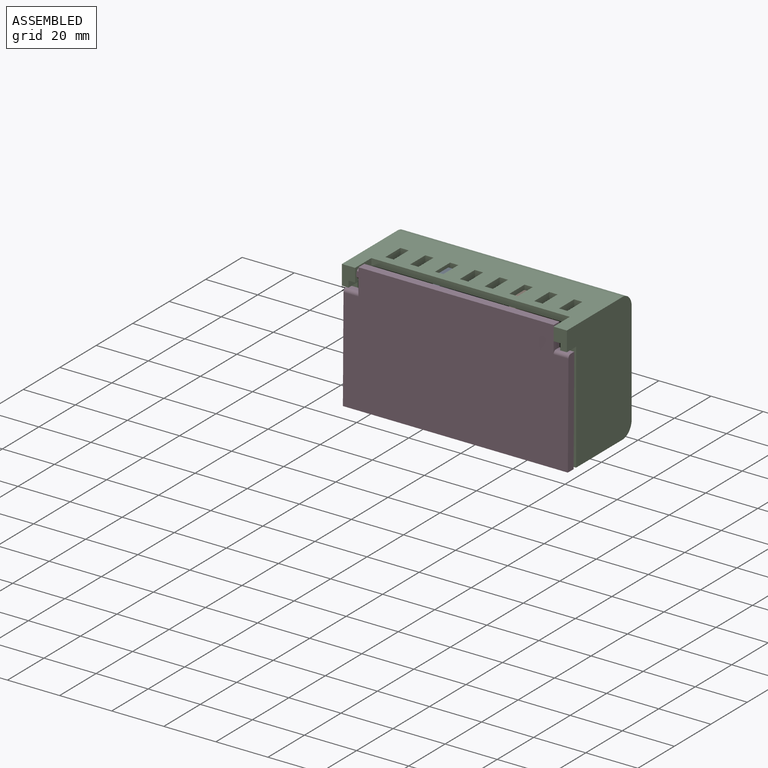
[diagram: assembled view]
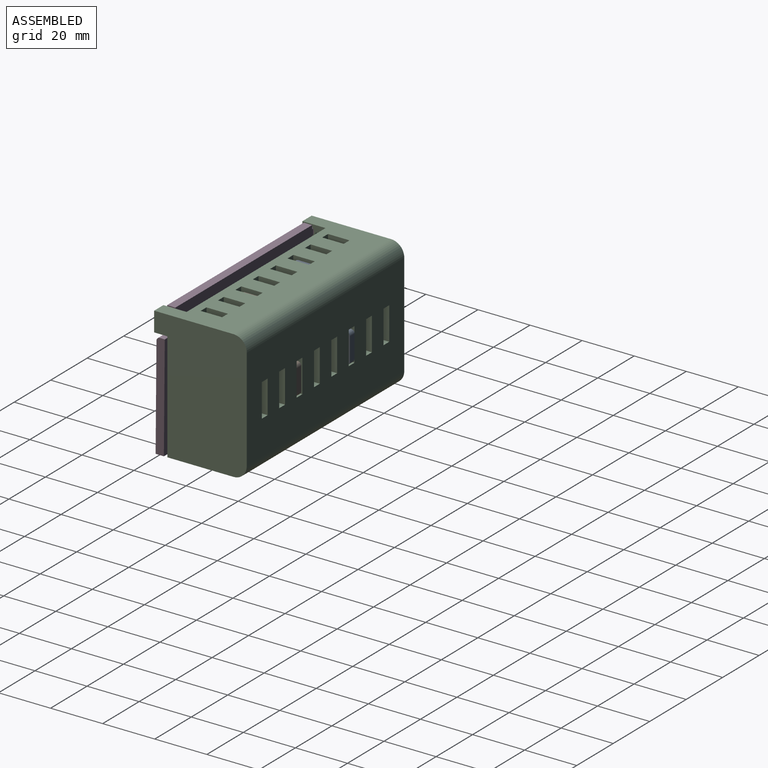
[diagram: assembled view, second angle]
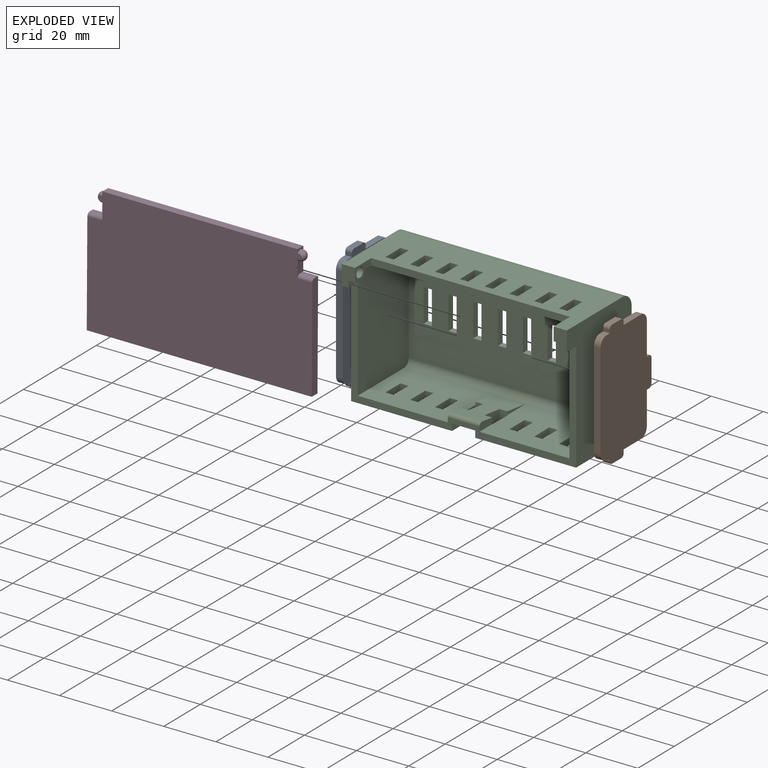
[diagram: exploded view]
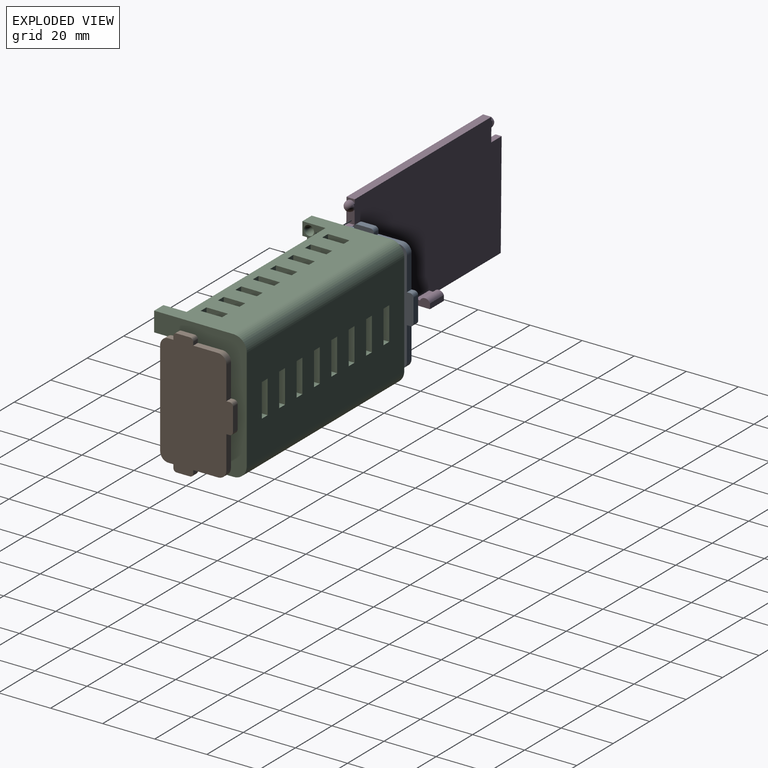
[diagram: exploded view, second angle]
ASSEMBLY  parts=4 mates=4
PART A: 28 faces, bbox 48.3x27.9x2.5 mm
  f0: plane 2.54x1.27mm, normal (1,0,0), area 3.2mm2, adj f1,f16,f17,f19
  f1: plane 12.7x2.54mm, normal (0,-1,0), area 32.3mm2, adj f0,f16,f17,f24
  f2: plane 9.53x2.54mm, normal (1,0,0), area 24.2mm2, adj f3,f16,f17,f24
  f3: plane 2.54x1.27mm, normal (0,-1,0), area 3.2mm2, adj f2,f16,f17,f22
  f4: plane 5.08x2.54mm, normal (1,0,0), area 12.9mm2, adj f16,f17,f22,f23
  f5: plane 2.54x1.27mm, normal (0,1,0), area 3.2mm2, adj f6,f16,f17,f23
  f6: plane 2.54x1.91mm, normal (1,0,0), area 4.8mm2, adj f5,f16,f17,f25
  f7: plane 36.83x2.54mm, normal (0,1,0), area 93.5mm2, adj f16,f17,f25,f26
  f8: plane 2.54x1.91mm, normal (-1,0,0), area 4.8mm2, adj f9,f16,f17,f26
  f9: plane 2.54x1.27mm, normal (0,1,0), area 3.2mm2, adj f8,f16,f17,f20
  f10: plane 5.08x2.54mm, normal (-1,0,0), area 12.9mm2, adj f16,f17,f20,f21
  f11: plane 2.54x1.27mm, normal (0,-1,0), area 3.2mm2, adj f12,f16,f17,f21
  f12: plane 9.53x2.54mm, normal (-1,0,0), area 24.2mm2, adj f11,f16,f17,f27
  f13: plane 12.7x2.54mm, normal (0,-1,0), area 32.3mm2, adj f14,f16,f17,f27
  f14: plane 2.54x1.27mm, normal (-1,0,0), area 3.2mm2, adj f13,f16,f17,f18
  f15: plane 8.89x2.54mm, normal (0,-1,0), area 22.6mm2, adj f16,f17,f18,f19
  f16: plane 48.26x27.94mm, normal (0,0,1), area 1153.8mm2, adj f0,f1,f2,f3,f4,f5,f6,f7
  f17: plane 48.26x27.94mm, normal (0,0,-1), area 1153.8mm2, adj f0,f1,f2,f3,f4,f5,f6,f7
  f18: cylinder r=1.27mm len=2.54mm, axis (0,0,-1), area 5.1mm2, adj f14,f15,f16,f17
  f19: cylinder r=1.27mm len=2.54mm, axis (0,0,1), area 5.1mm2, adj f0,f15,f16,f17
  f20: cylinder r=1.27mm len=2.54mm, axis (0,0,-1), area 5.1mm2, adj f9,f10,f16,f17
  f21: cylinder r=1.27mm len=2.54mm, axis (0,0,1), area 5.1mm2, adj f10,f11,f16,f17
  f22: cylinder r=1.27mm len=2.54mm, axis (0,0,1), area 5.1mm2, adj f3,f4,f16,f17
  f23: cylinder r=1.27mm len=2.54mm, axis (0,0,-1), area 5.1mm2, adj f4,f5,f16,f17
  f24: cylinder r=3.17mm len=3.18mm, axis (0,0,-1), area 12.7mm2, adj f1,f2,f16,f17
  f25: cylinder r=3.17mm len=3.18mm, axis (0,0,1), area 12.7mm2, adj f6,f7,f16,f17
  f26: cylinder r=3.17mm len=3.18mm, axis (0,0,-1), area 12.7mm2, adj f7,f8,f16,f17
  f27: cylinder r=3.17mm len=3.18mm, axis (0,0,1), area 12.7mm2, adj f12,f13,f16,f17
PART B: same geometry as A
PART C: 137 faces, bbox 86.4x49.5x35.6 mm
  f0: plane 23.97x12.19mm, normal (0,0.99,-0.12), area 245.9mm2, adj f1,f2,f18,f60,f62,f63,f72,f73
  f1: plane 6.99x3.01mm, normal (1,0,0), area 18.7mm2, adj f0,f4,f10,f72,f136
  f2: plane 6.99x3.01mm, normal (-1,0,0), area 18.7mm2, adj f0,f4,f5,f60,f136
  f3: plane 8.89x1.27mm, normal (0,-1,0), area 11.3mm2, adj f4,f131,f132,f135
  f4: plane 86.36x41.99mm, normal (0,0,1), area 418.4mm2, adj f1,f2,f3,f5,f9,f10,f12,f13
  f5: plane 34.54x25.4mm, normal (0,1,0), area 796.7mm2, adj f2,f4,f16,f18,f24,f25,f26,f27
  f6: plane 86.36x30.48mm, normal (0,1,0), area 1745.2mm2, adj f12,f13,f15,f20,f21,f22,f23,f32
  f7: plane 86.36x39.37mm, normal (0,0,-1), area 3077.4mm2, adj f12,f13,f14,f15,f28,f29,f30,f31
  f8: plane 81.28x39.37mm, normal (0,0,1), area 2877.4mm2, adj f16,f17,f18,f19,f28,f29,f30,f31
  f9: plane 86.36x25.4mm, normal (0,-1,0), area 1927.4mm2, adj f4,f12,f13,f14,f24,f25,f26,f27
  f10: plane 34.54x25.4mm, normal (0,1,0), area 796.7mm2, adj f1,f4,f17,f18,f72,f74,f75,f84
  f11: plane 81.28x25.4mm, normal (0,-1,0), area 1564.5mm2, adj f16,f17,f19,f20,f21,f22,f23,f32
  f12: plane 49.53x35.56mm, normal (-1,0,0), area 1536.9mm2, adj f4,f6,f7,f9,f14,f15,f119,f120
  f13: plane 49.53x35.56mm, normal (1,0,0), area 1536.9mm2, adj f4,f6,f7,f9,f14,f15,f123,f126
  f14: cylinder r=5.08mm len=86.36mm, axis (1,0,0), area 689.1mm2, adj f7,f9,f12,f13
  f15: cylinder r=5.08mm len=86.36mm, axis (-1,0,0), area 689.1mm2, adj f6,f7,f12,f13
  f16: plane 44.45x33.02mm, normal (1,0,0), area 1251.6mm2, adj f4,f5,f8,f11,f18,f19,f116,f117
  f17: plane 44.45x33.02mm, normal (-1,0,0), area 1251.6mm2, adj f4,f8,f10,f11,f18,f19,f122,f123
  f18: cylinder r=2.54mm len=81.28mm, axis (1,0,0), area 324.3mm2, adj f0,f5,f8,f10,f16,f17
  f19: cylinder r=2.54mm len=81.28mm, axis (-1,0,0), area 324.3mm2, adj f8,f11,f16,f17
  f20: plane 8.26x2.54mm, normal (-1,0,0), area 21mm2, adj f6,f11,f21,f23
  f21: plane 3.18x2.54mm, normal (0,0,1), area 8.1mm2, adj f6,f11,f20,f22
  f22: plane 8.26x2.54mm, normal (1,0,0), area 21mm2, adj f6,f11,f21,f23
  f23: plane 3.18x2.54mm, normal (0,0,-1), area 8.1mm2, adj f6,f11,f20,f22
  f24: plane 3.18x2.54mm, normal (0,0,-1), area 8.1mm2, adj f5,f9,f25,f27
  f25: plane 8.26x2.54mm, normal (1,0,0), area 21mm2, adj f5,f9,f24,f26
  f26: plane 3.18x2.54mm, normal (0,0,1), area 8.1mm2, adj f5,f9,f25,f27
  f27: plane 8.26x2.54mm, normal (-1,0,0), area 21mm2, adj f5,f9,f24,f26
  f28: plane 12.7x2.54mm, normal (1,0,0), area 32.3mm2, adj f7,f8,f29,f31
  f29: plane 3.18x2.54mm, normal (0,-1,0), area 8.1mm2, adj f7,f8,f28,f30
  f30: plane 12.7x2.54mm, normal (-1,0,0), area 32.3mm2, adj f7,f8,f29,f31
  f31: plane 3.18x2.54mm, normal (0,1,0), area 8.1mm2, adj f7,f8,f28,f30
  f32: plane 8.26x2.54mm, normal (-1,0,0), area 21mm2, adj f6,f11,f33,f35
  f33: plane 3.18x2.54mm, normal (0,0,1), area 8.1mm2, adj f6,f11,f32,f34
  f34: plane 8.26x2.54mm, normal (1,0,0), area 21mm2, adj f6,f11,f33,f35
  f35: plane 3.18x2.54mm, normal (0,0,-1), area 8.1mm2, adj f6,f11,f32,f34
  f36: plane 3.18x2.54mm, normal (0,0,-1), area 8.1mm2, adj f5,f9,f37,f39
  f37: plane 8.26x2.54mm, normal (1,0,0), area 21mm2, adj f5,f9,f36,f38
  f38: plane 3.18x2.54mm, normal (0,0,1), area 8.1mm2, adj f5,f9,f37,f39
  f39: plane 8.26x2.54mm, normal (-1,0,0), area 21mm2, adj f5,f9,f36,f38
  f40: plane 12.7x2.54mm, normal (1,0,0), area 32.3mm2, adj f7,f8,f41,f43
  f41: plane 3.18x2.54mm, normal (0,-1,0), area 8.1mm2, adj f7,f8,f40,f42
  f42: plane 12.7x2.54mm, normal (-1,0,0), area 32.3mm2, adj f7,f8,f41,f43
  f43: plane 3.18x2.54mm, normal (0,1,0), area 8.1mm2, adj f7,f8,f40,f42
  f44: plane 8.26x2.54mm, normal (-1,0,0), area 21mm2, adj f6,f11,f45,f47
  f45: plane 3.18x2.54mm, normal (0,0,1), area 8.1mm2, adj f6,f11,f44,f46
  f46: plane 8.26x2.54mm, normal (1,0,0), area 21mm2, adj f6,f11,f45,f47
  f47: plane 3.18x2.54mm, normal (0,0,-1), area 8.1mm2, adj f6,f11,f44,f46
  f48: plane 3.18x2.54mm, normal (0,0,-1), area 8.1mm2, adj f5,f9,f49,f51
  f49: plane 8.26x2.54mm, normal (1,0,0), area 21mm2, adj f5,f9,f48,f50
  f50: plane 3.18x2.54mm, normal (0,0,1), area 8.1mm2, adj f5,f9,f49,f51
  f51: plane 8.26x2.54mm, normal (-1,0,0), area 21mm2, adj f5,f9,f48,f50
  f52: plane 12.7x2.54mm, normal (1,0,0), area 32.3mm2, adj f7,f8,f53,f55
  f53: plane 3.18x2.54mm, normal (0,-1,0), area 8.1mm2, adj f7,f8,f52,f54
  f54: plane 12.7x2.54mm, normal (-1,0,0), area 32.3mm2, adj f7,f8,f53,f55
  f55: plane 3.18x2.54mm, normal (0,1,0), area 8.1mm2, adj f7,f8,f52,f54
  f56: plane 8.26x2.54mm, normal (-1,0,0), area 21mm2, adj f6,f11,f57,f59
  f57: plane 3.18x2.54mm, normal (0,0,1), area 8.1mm2, adj f6,f11,f56,f58
  f58: plane 8.26x2.54mm, normal (1,0,0), area 21mm2, adj f6,f11,f57,f59
  f59: plane 3.18x2.54mm, normal (0,0,-1), area 8.1mm2, adj f6,f11,f56,f58
  f60: plane 4.84x3.18mm, normal (0,0,-1), area 14.8mm2, adj f0,f2,f5,f9,f61,f63
  f61: plane 8.26x2.54mm, normal (1,0,0), area 21mm2, adj f5,f9,f60,f62
  f62: plane 3.81x3.18mm, normal (0,0,1), area 11.8mm2, adj f0,f5,f9,f61,f63,f130
  f63: plane 8.26x4.84mm, normal (-1,0,0), area 35.7mm2, adj f0,f9,f60,f62
  f64: plane 12.7x2.54mm, normal (1,0,0), area 32.3mm2, adj f7,f8,f65,f67
  f65: plane 3.18x2.54mm, normal (0,-1,0), area 8.1mm2, adj f7,f8,f64,f66
  f66: plane 12.7x2.54mm, normal (-1,0,0), area 32.3mm2, adj f7,f8,f65,f67
  f67: plane 3.18x2.54mm, normal (0,1,0), area 8.1mm2, adj f7,f8,f64,f66
  f68: plane 8.26x2.54mm, normal (-1,0,0), area 21mm2, adj f6,f11,f69,f71
  f69: plane 3.18x2.54mm, normal (0,0,1), area 8.1mm2, adj f6,f11,f68,f70
  f70: plane 8.26x2.54mm, normal (1,0,0), area 21mm2, adj f6,f11,f69,f71
  f71: plane 3.18x2.54mm, normal (0,0,-1), area 8.1mm2, adj f6,f11,f68,f70
  f72: plane 4.84x3.18mm, normal (0,0,-1), area 14.8mm2, adj f0,f1,f9,f10,f73,f75
  f73: plane 8.26x4.84mm, normal (1,0,0), area 35.7mm2, adj f0,f9,f72,f74
  f74: plane 3.81x3.18mm, normal (0,0,1), area 11.8mm2, adj f0,f9,f10,f73,f75,f129
  f75: plane 8.26x2.54mm, normal (-1,0,0), area 21mm2, adj f9,f10,f72,f74
  f76: plane 12.7x2.54mm, normal (1,0,0), area 32.3mm2, adj f7,f8,f77,f79
  f77: plane 3.18x2.54mm, normal (0,-1,0), area 8.1mm2, adj f7,f8,f76,f78
  f78: plane 12.7x2.54mm, normal (-1,0,0), area 32.3mm2, adj f7,f8,f77,f79
  f79: plane 3.18x2.54mm, normal (0,1,0), area 8.1mm2, adj f7,f8,f76,f78
  f80: plane 8.26x2.54mm, normal (-1,0,0), area 21mm2, adj f6,f11,f81,f83
  f81: plane 3.18x2.54mm, normal (0,0,1), area 8.1mm2, adj f6,f11,f80,f82
  f82: plane 8.26x2.54mm, normal (1,0,0), area 21mm2, adj f6,f11,f81,f83
  f83: plane 3.18x2.54mm, normal (0,0,-1), area 8.1mm2, adj f6,f11,f80,f82
  f84: plane 3.18x2.54mm, normal (0,0,-1), area 8.1mm2, adj f9,f10,f85,f87
  f85: plane 8.26x2.54mm, normal (1,0,0), area 21mm2, adj f9,f10,f84,f86
  f86: plane 3.18x2.54mm, normal (0,0,1), area 8.1mm2, adj f9,f10,f85,f87
  f87: plane 8.26x2.54mm, normal (-1,0,0), area 21mm2, adj f9,f10,f84,f86
  f88: plane 12.7x2.54mm, normal (1,0,0), area 32.3mm2, adj f7,f8,f89,f91
  f89: plane 3.18x2.54mm, normal (0,-1,0), area 8.1mm2, adj f7,f8,f88,f90
  f90: plane 12.7x2.54mm, normal (-1,0,0), area 32.3mm2, adj f7,f8,f89,f91
  f91: plane 3.18x2.54mm, normal (0,1,0), area 8.1mm2, adj f7,f8,f88,f90
  f92: plane 8.26x2.54mm, normal (-1,0,0), area 21mm2, adj f6,f11,f93,f95
  f93: plane 3.18x2.54mm, normal (0,0,1), area 8.1mm2, adj f6,f11,f92,f94
  f94: plane 8.26x2.54mm, normal (1,0,0), area 21mm2, adj f6,f11,f93,f95
  f95: plane 3.18x2.54mm, normal (0,0,-1), area 8.1mm2, adj f6,f11,f92,f94
  f96: plane 3.18x2.54mm, normal (0,0,-1), area 8.1mm2, adj f9,f10,f97,f99
  f97: plane 8.26x2.54mm, normal (1,0,0), area 21mm2, adj f9,f10,f96,f98
  f98: plane 3.18x2.54mm, normal (0,0,1), area 8.1mm2, adj f9,f10,f97,f99
  f99: plane 8.26x2.54mm, normal (-1,0,0), area 21mm2, adj f9,f10,f96,f98
  f100: plane 12.7x2.54mm, normal (1,0,0), area 32.3mm2, adj f7,f8,f101,f103
  f101: plane 3.18x2.54mm, normal (0,-1,0), area 8.1mm2, adj f7,f8,f100,f102
  f102: plane 12.7x2.54mm, normal (-1,0,0), area 32.3mm2, adj f7,f8,f101,f103
  f103: plane 3.18x2.54mm, normal (0,1,0), area 8.1mm2, adj f7,f8,f100,f102
  f104: plane 8.26x2.54mm, normal (-1,0,0), area 21mm2, adj f6,f11,f105,f107
  f105: plane 3.18x2.54mm, normal (0,0,1), area 8.1mm2, adj f6,f11,f104,f106
  f106: plane 8.26x2.54mm, normal (1,0,0), area 21mm2, adj f6,f11,f105,f107
  f107: plane 3.18x2.54mm, normal (0,0,-1), area 8.1mm2, adj f6,f11,f104,f106
  f108: plane 3.18x2.54mm, normal (0,0,-1), area 8.1mm2, adj f9,f10,f109,f111
  f109: plane 8.26x2.54mm, normal (1,0,0), area 21mm2, adj f9,f10,f108,f110
  f110: plane 3.18x2.54mm, normal (0,0,1), area 8.1mm2, adj f9,f10,f109,f111
  f111: plane 8.26x2.54mm, normal (-1,0,0), area 21mm2, adj f9,f10,f108,f110
  f112: plane 12.7x2.54mm, normal (1,0,0), area 32.3mm2, adj f7,f8,f113,f115
  f113: plane 3.18x2.54mm, normal (0,-1,0), area 8.1mm2, adj f7,f8,f112,f114
  f114: plane 12.7x2.54mm, normal (-1,0,0), area 32.3mm2, adj f7,f8,f113,f115
  f115: plane 3.18x2.54mm, normal (0,1,0), area 8.1mm2, adj f7,f8,f112,f114
  f116: plane 2.54x2.54mm, normal (0,0,-1), area 6.5mm2, adj f11,f16,f117,f118
  f117: plane 5.08x2.54mm, normal (0,-1,0), area 12.9mm2, adj f16,f116,f118,f120
  f118: plane 8.89x5.08mm, normal (1,0,0), area 24.1mm2, adj f6,f11,f116,f117,f120,f121,f128
  f119: plane 5.08x2.54mm, normal (0,-1,0), area 12.9mm2, adj f4,f12,f16,f120
  f120: plane 7.54x5.08mm, normal (0,0,1), area 32mm2, adj f6,f12,f16,f117,f118,f119
  f121: sphere r=1.91mm, area 22.8mm2, adj f118
  f122: plane 2.54x2.54mm, normal (0,0,-1), area 6.5mm2, adj f11,f17,f124,f125
  f123: plane 5.08x2.54mm, normal (0,-1,0), area 12.9mm2, adj f4,f13,f17,f126
  f124: plane 8.89x5.08mm, normal (-1,0,0), area 24.1mm2, adj f6,f11,f122,f125,f126,f127,f128
  f125: plane 5.08x2.54mm, normal (0,-1,0), area 12.9mm2, adj f17,f122,f124,f126
  f126: plane 7.54x5.08mm, normal (0,0,1), area 32mm2, adj f6,f13,f17,f123,f124,f125
  f127: sphere r=1.91mm, area 22.8mm2, adj f124
  f128: plane 76.2x2.54mm, normal (0,0,1), area 193.5mm2, adj f6,f11,f118,f124
  f129: plane 10.16x1.27mm, normal (1,0,0), area 6.5mm2, adj f0,f10,f74
  f130: plane 10.16x1.27mm, normal (-1,0,0), area 6.5mm2, adj f0,f5,f62
  f131: plane 6.35x3.81mm, normal (1,0,0), area 19.6mm2, adj f3,f4,f9,f133,f134,f135
  f132: plane 6.35x3.81mm, normal (-1,0,0), area 19.6mm2, adj f3,f4,f9,f133,f134,f135
  f133: plane 8.89x1.27mm, normal (0,-1,0), area 11.3mm2, adj f131,f132,f134,f135
  f134: plane 8.89x2.54mm, normal (0,0,1), area 22.6mm2, adj f9,f131,f132,f133
  f135: cylinder r=2.06mm len=8.89mm, axis (1,0,0), area 43.2mm2, adj f3,f131,f132,f133
  f136: cylinder r=1.27mm len=12.19mm, axis (-1,0,0), area 26.2mm2, adj f0,f1,f2,f4
PART D: 27 faces, bbox 86.4x49.5x9.2 mm
  f0: sphere r=1.91mm, area 19.7mm2, adj f9,f10,f13,f15
  f1: sphere r=1.91mm, area 19.7mm2, adj f9,f17,f18,f20
  f2: plane 74.93x3.18mm, normal (0,1,0), area 237.9mm2, adj f3,f9,f16,f21
  f3: plane 86.36x49.53mm, normal (0,0,1), area 4163mm2, adj f2,f4,f5,f6,f7,f8,f10,f13
  f4: plane 5.72x1.91mm, normal (0,1,0), area 10.9mm2, adj f3,f5,f12,f14
  f5: plane 40.64x3.18mm, normal (-1,0,0), area 128.7mm2, adj f3,f4,f6,f9,f12
  f6: plane 86.36x8.89mm, normal (0,-1,0), area 317.7mm2, adj f3,f5,f7,f9,f24,f25,f26
  f7: plane 40.64x3.18mm, normal (1,0,0), area 128.7mm2, adj f3,f6,f8,f9,f11
  f8: plane 5.72x1.91mm, normal (0,1,0), area 10.9mm2, adj f3,f7,f11,f19
  f9: plane 86.36x49.53mm, normal (0,0,-1), area 4166.9mm2, adj f0,f1,f2,f5,f6,f7,f11,f12
  f10: plane 2.09x0.31mm, normal (1,0,0), area 0.4mm2, adj f0,f3
  f11: cylinder r=1.27mm len=5.72mm, axis (-1,0,0), area 11.4mm2, adj f7,f8,f9,f19
  f12: cylinder r=1.27mm len=5.72mm, axis (-1,0,0), area 11.4mm2, adj f4,f5,f9,f14
  f13: cylinder r=1.9mm len=3.18mm, axis (-1,0,0), area 2.4mm2, adj f0,f3,f9,f14
  f14: plane 6.57x3.18mm, normal (-1,0,0), area 15.3mm2, adj f3,f4,f9,f12,f13
  f15: cylinder r=1.9mm len=3.18mm, axis (-1,0,0), area 2.4mm2, adj f0,f3,f9,f16
  f16: plane 3.18x1.49mm, normal (-1,0,0), area 2.8mm2, adj f2,f3,f9,f15
  f17: plane 2.09x0.31mm, normal (-1,0,0), area 0.4mm2, adj f1,f3
  f18: cylinder r=1.9mm len=3.18mm, axis (1,0,0), area 2.4mm2, adj f1,f3,f9,f19
  f19: plane 6.57x3.18mm, normal (1,0,0), area 15.3mm2, adj f3,f8,f9,f11,f18
  f20: cylinder r=1.9mm len=3.18mm, axis (1,0,0), area 2.4mm2, adj f1,f3,f9,f21
  f21: plane 3.18x1.49mm, normal (1,0,0), area 2.8mm2, adj f2,f3,f9,f20
  f22: plane 7.62x1.91mm, normal (0,1,0), area 14.5mm2, adj f3,f23,f25,f26
  f23: cylinder r=2.06mm len=7.62mm, axis (-1,0,0), area 37mm2, adj f22,f24,f25,f26
  f24: plane 7.62x2.03mm, normal (0,0,1), area 15.5mm2, adj f6,f23,f25,f26
  f25: plane 5.72x3.3mm, normal (1,0,0), area 15.1mm2, adj f3,f6,f22,f23,f24
  f26: plane 5.72x3.3mm, normal (-1,0,0), area 15.1mm2, adj f3,f6,f22,f23,f24
PLACE A rot(axis=(0.71,0,-0.71),180deg) t=(8.9,0.59,27.2)mm
PLACE B rot(axis=(0.71,0,-0.71),180deg) t=(38.11,0.59,27.2)mm
PLACE C rot(axis=(1,0,0),90deg) t=(-20.94,3.13,-18.52)mm fixed
PLACE D rot(axis=(0,0.71,0.7),180deg) t=(22.24,-31.67,6.26)mm
MATE revolute D.f13 <-> C.f118  axis (1,0,0) through (-15.86,-29.89,28.47)mm
MATE planar A.f16 <-> C.f49  axis (-1,0,0) through (6.36,-11.89,5.61)mm
MATE planar A.f6 <-> C.f5  axis (0,0,-1) through (7.63,-20.69,-15.98)mm
MATE planar A.f13 <-> C.f8  axis (0,1,0) through (7.63,0.59,17.67)mm
